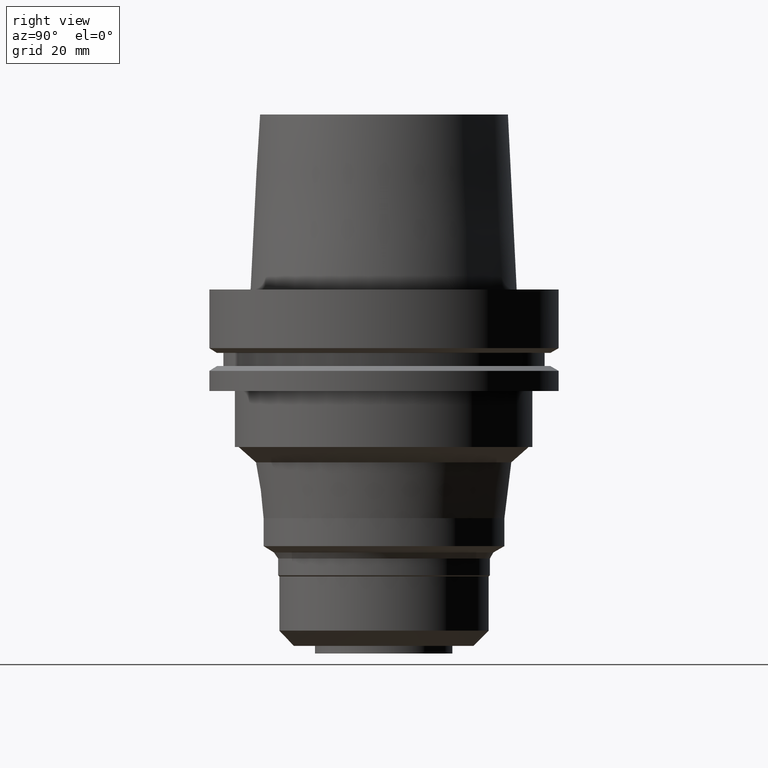
[diagram: clean part render]
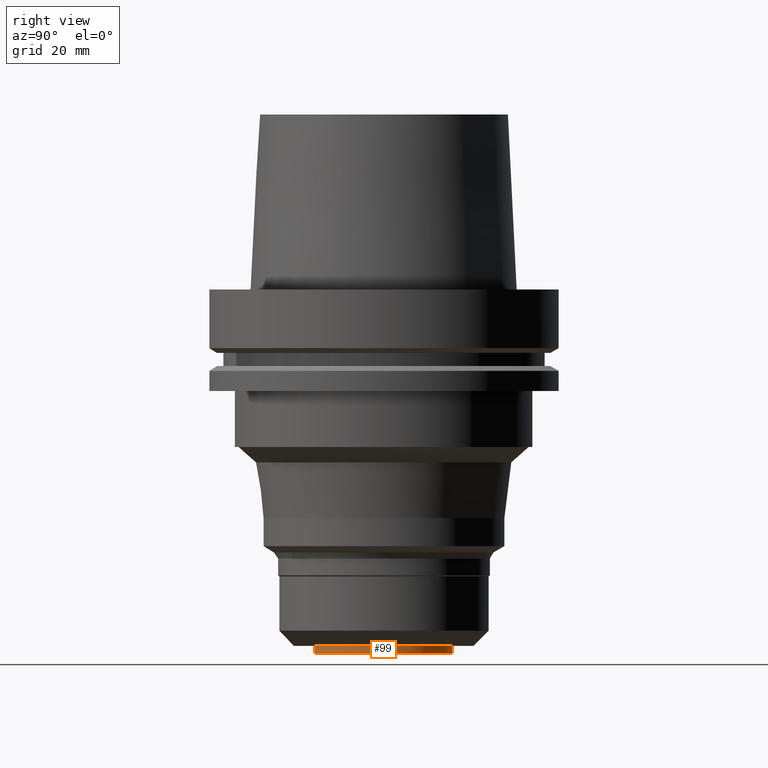
[diagram: same view with one face highlighted and labeled with its STEP entity id]
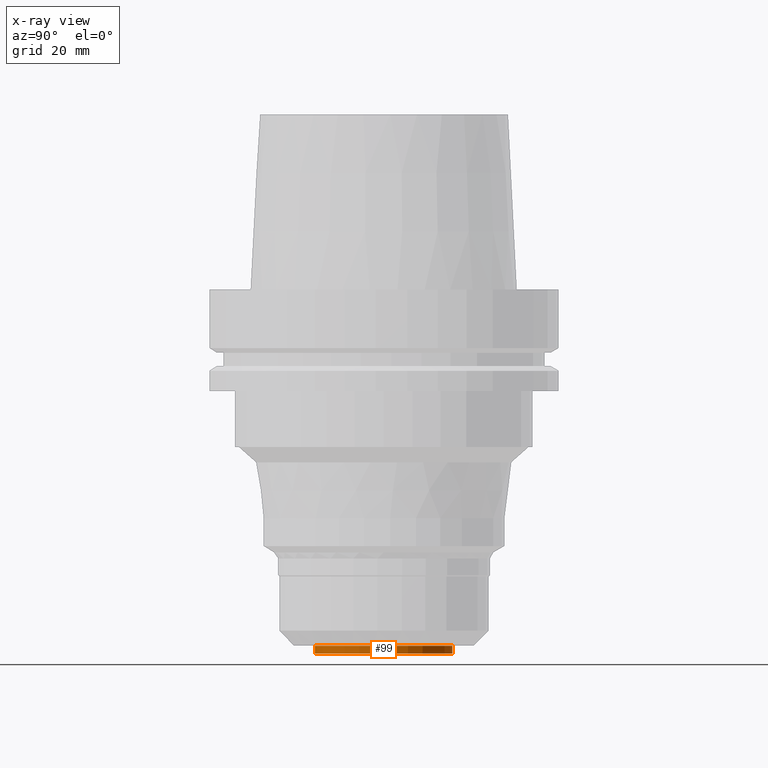
[diagram: x-ray of the same camera — body ghosted, the highlighted face saturated]
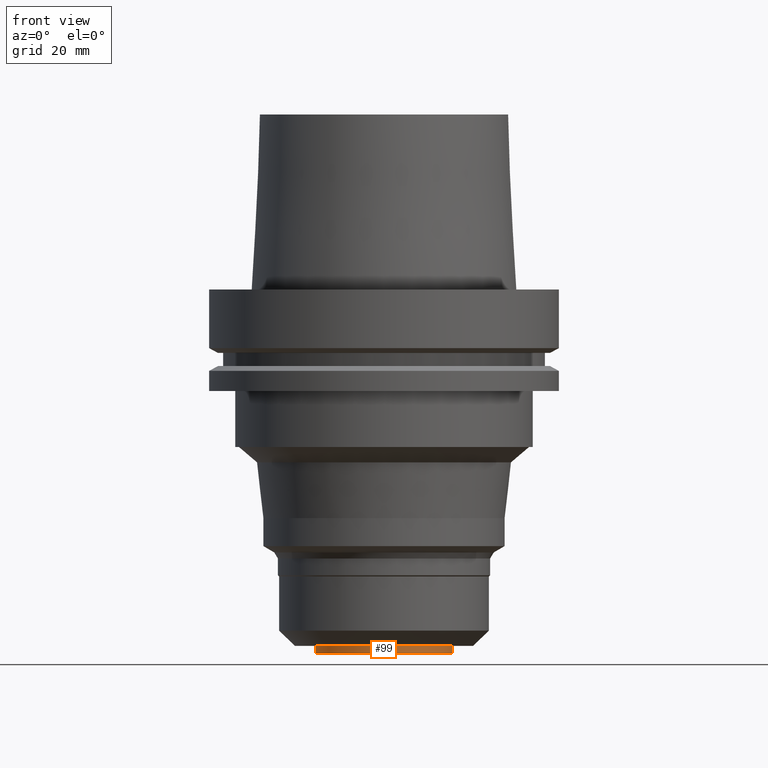
[diagram: same view with one face highlighted and labeled with its STEP entity id]
A machine part, right view. The second image highlights one B-rep face of the part: STEP entity #99.
The next image is the same camera in x-ray: the body ghosted, the highlighted face saturated — about 0% of this face is hidden behind the body in this view.
A second angle (front view) of the same face is appended — the face is thin or edge-on in the first view.
In plain terms, the highlighted cylindrical surface (bore or boss wall) has radius 19.6251 mm, axis along (0, 0, -1).
Its self-contained STEP definition (entity closure, byte-faithful):
#99=ADVANCED_FACE('Unnamed[1]',(#255,#256),#257,.T.);
#126=EDGE_CURVE('Unnamed[1]',#298,#298,#299,.T.);
#190=EDGE_CURVE('Unnamed[1]',#398,#398,#399,.T.);
#255=FACE_BOUND('',#469,.T.);
#256=FACE_BOUND('',#470,.T.);
#257=CYLINDRICAL_SURFACE('',#471,19.625107076497);
#298=VERTEX_POINT('',#523);
#299=CIRCLE('',#524,19.625107076497);
#398=VERTEX_POINT('',#648);
#399=CIRCLE('',#649,19.625107076497);
#469=EDGE_LOOP('',(#712));
#470=EDGE_LOOP('',(#713));
#471=AXIS2_PLACEMENT_3D('',#714,#715,#716);
#523=CARTESIAN_POINT('',(6.36816335556624E-015,19.6251070764971,-104.0));
#524=AXIS2_PLACEMENT_3D('',#761,#762,#763);
#648=CARTESIAN_POINT('',(6.23345220766002E-015,19.625107076497,-101.8));
#649=AXIS2_PLACEMENT_3D('',#870,#871,#872);
#712=ORIENTED_EDGE('',*,*,#126,.F.);
#713=ORIENTED_EDGE('',*,*,#190,.T.);
#714=CARTESIAN_POINT('',(6.30080778161313E-015,1.26016155632262E-014,-102.9));
#715=DIRECTION('',(6.12323399573677E-017,1.22464679914735E-016,-1.0));
#716=DIRECTION('',(-1.23259516440783E-032,1.0,1.22464679914735E-016));
#761=CARTESIAN_POINT('',(6.36816335556624E-015,1.27363267111325E-014,-104.0));
#762=DIRECTION('',(6.12323399573677E-017,1.22464679914735E-016,-1.0));
#763=DIRECTION('',(-1.23259516440783E-032,1.0,1.22464679914735E-016));
#870=CARTESIAN_POINT('',(6.23345220766002E-015,1.246690441532E-014,-101.8));
#871=DIRECTION('',(6.12323399573677E-017,1.22464679914735E-016,-1.0));
#872=DIRECTION('',(-1.23259516440783E-032,1.0,1.22464679914735E-016));